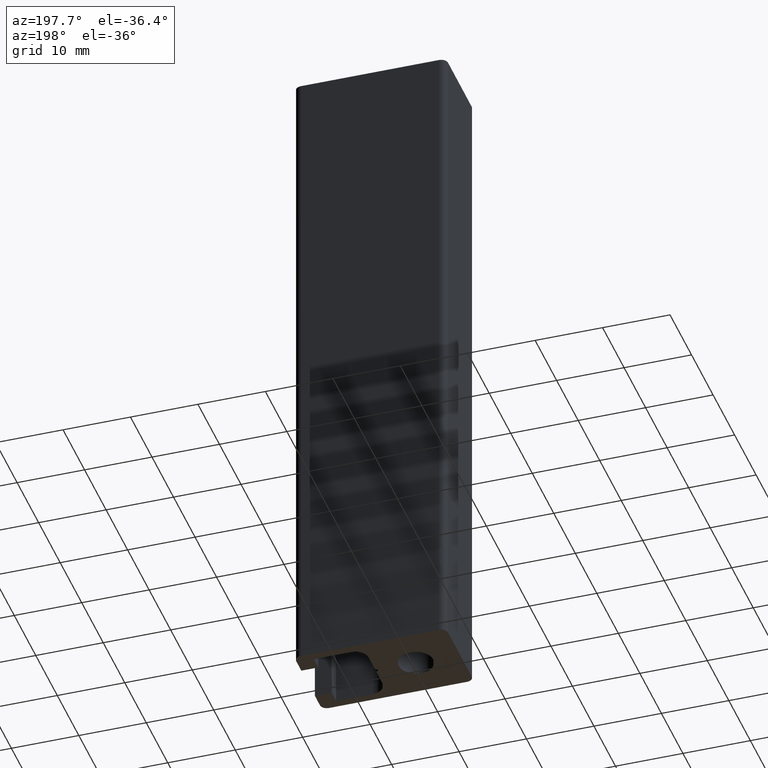
[diagram: clean part render]
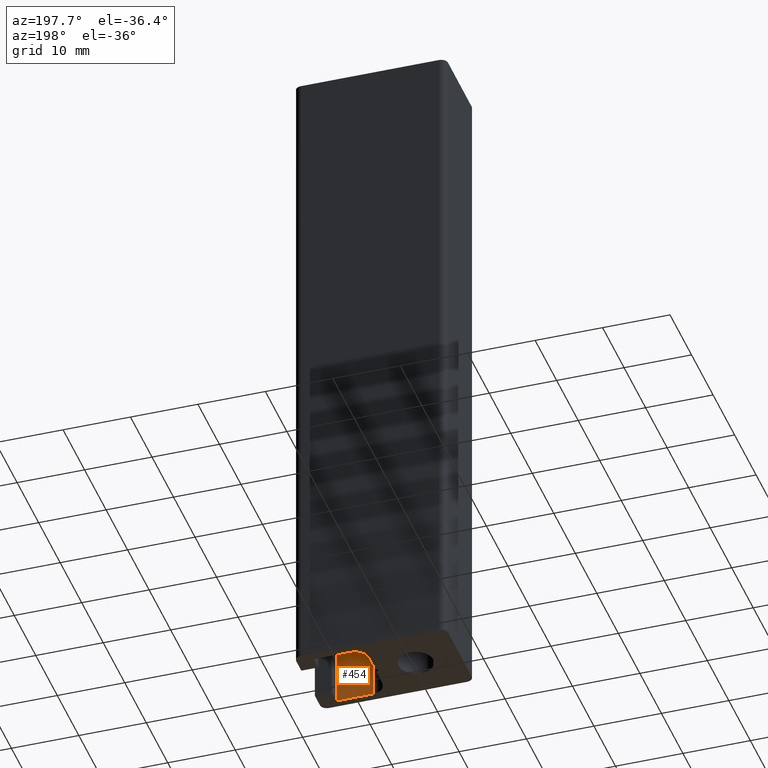
[diagram: same view with one face highlighted and labeled with its STEP entity id]
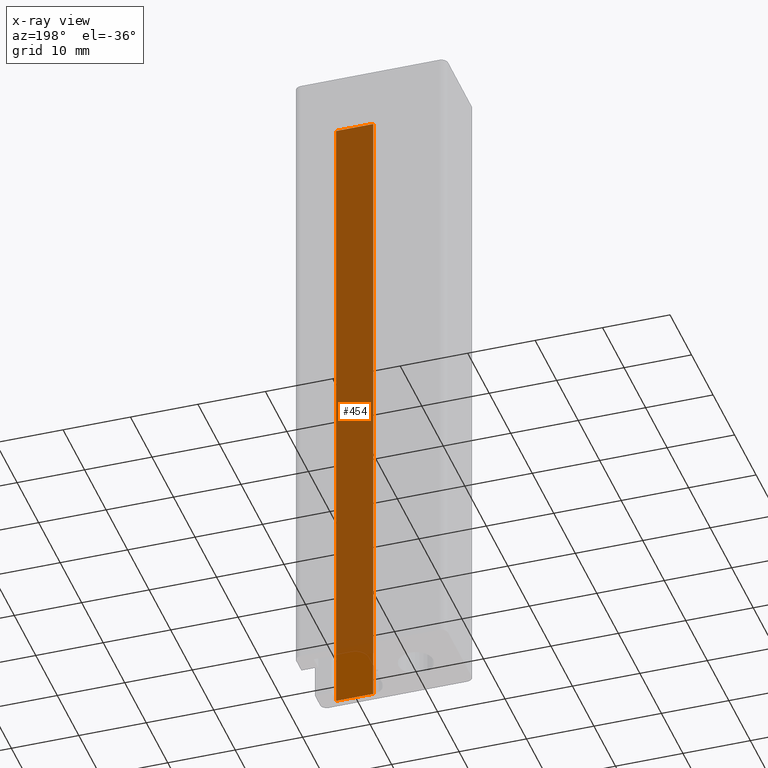
[diagram: x-ray of the same camera — body ghosted, the highlighted face saturated]
A machine part, auxiliary view. The second image highlights one B-rep face of the part: STEP entity #454.
The next image is the same camera in x-ray: the body ghosted, the highlighted face saturated — about 92% of this face is hidden behind the body in this view.
In plain terms, the highlighted planar face has unit normal (-0, -1, 0).
Its self-contained STEP definition (entity closure, byte-faithful):
#28=LINE('',#678,#79);
#29=LINE('',#682,#80);
#30=LINE('',#684,#81);
#31=LINE('',#685,#82);
#79=VECTOR('',#545,100.);
#80=VECTOR('',#550,5.5);
#81=VECTOR('',#551,100.);
#82=VECTOR('',#552,5.5);
#121=PLANE('',#484);
#143=FACE_OUTER_BOUND('',#168,.T.);
#168=EDGE_LOOP('',(#333,#334,#335,#336));
#214=VERTEX_POINT('',#675);
#215=VERTEX_POINT('',#677);
#216=VERTEX_POINT('',#681);
#217=VERTEX_POINT('',#683);
#262=EDGE_CURVE('',#215,#214,#28,.T.);
#264=EDGE_CURVE('',#216,#214,#29,.T.);
#265=EDGE_CURVE('',#217,#216,#30,.T.);
#266=EDGE_CURVE('',#215,#217,#31,.T.);
#333=ORIENTED_EDGE('',*,*,#264,.F.);
#334=ORIENTED_EDGE('',*,*,#265,.F.);
#335=ORIENTED_EDGE('',*,*,#266,.F.);
#336=ORIENTED_EDGE('',*,*,#262,.T.);
#454=ADVANCED_FACE('',(#143),#121,.F.);
#484=AXIS2_PLACEMENT_3D('',#680,#548,#549);
#545=DIRECTION('',(0.,0.,1.));
#548=DIRECTION('center_axis',(-2.01858731750028E-16,-1.,0.));
#549=DIRECTION('ref_axis',(0.,0.,-1.));
#550=DIRECTION('',(-1.,2.01858731750029E-16,0.));
#551=DIRECTION('',(0.,0.,1.));
#552=DIRECTION('',(1.,-2.01858731750029E-16,0.));
#675=CARTESIAN_POINT('',(8.,-5.2,100.));
#677=CARTESIAN_POINT('',(8.,-5.2,0.));
#678=CARTESIAN_POINT('',(8.,-5.2,0.));
#680=CARTESIAN_POINT('Origin',(13.5,-5.2,0.));
#681=CARTESIAN_POINT('',(13.5,-5.2,100.));
#682=CARTESIAN_POINT('',(9.125,-5.2,100.));
#683=CARTESIAN_POINT('',(13.5,-5.2,0.));
#684=CARTESIAN_POINT('',(13.5,-5.2,0.));
#685=CARTESIAN_POINT('',(9.125,-5.2,0.));